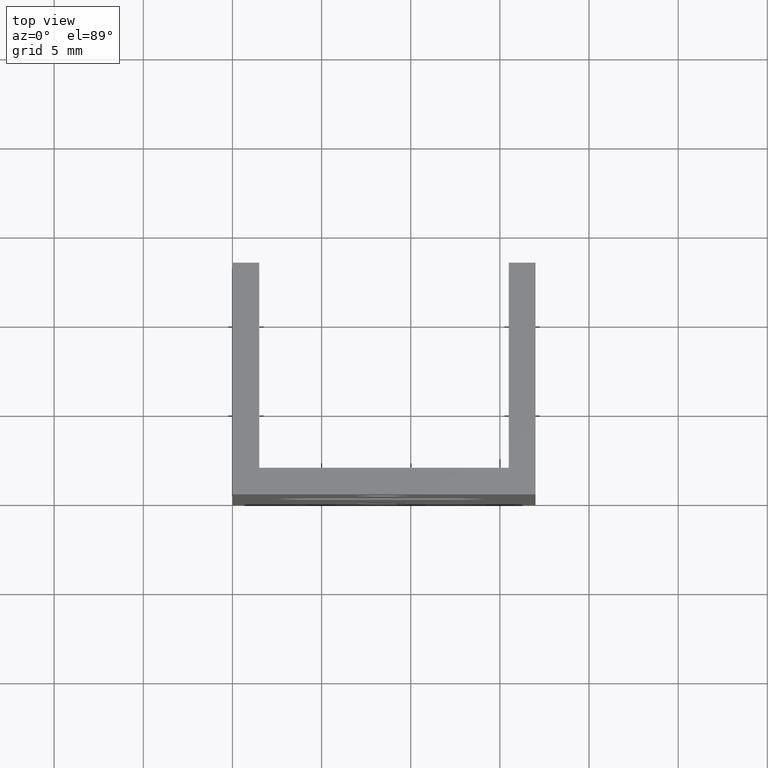
[diagram: clean part render]
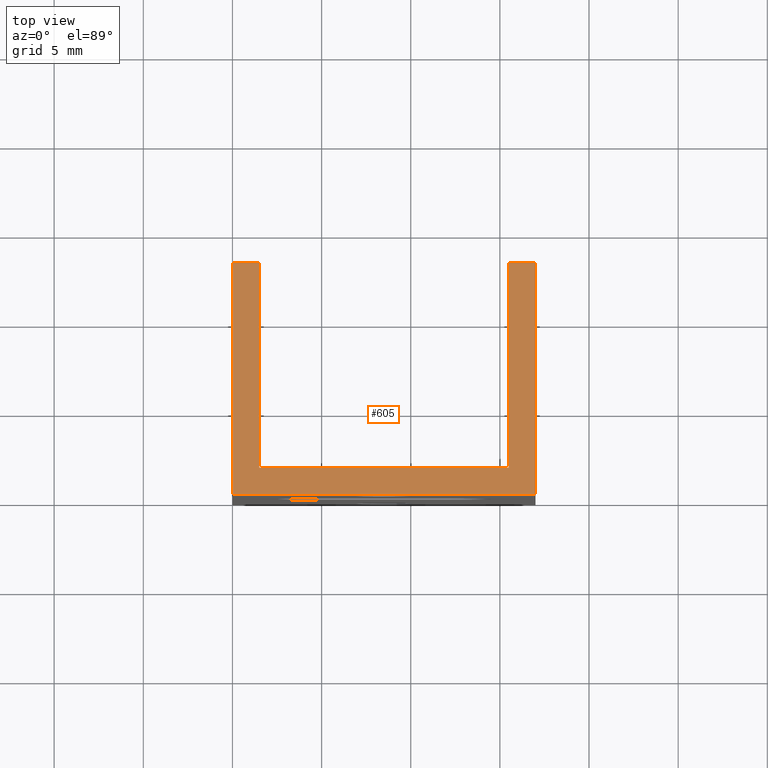
[diagram: same view with one face highlighted and labeled with its STEP entity id]
A machine part, top view. The second image highlights one B-rep face of the part: STEP entity #605.
In plain terms, the highlighted planar face has unit normal (0, 0, -1).
Its self-contained STEP definition (entity closure, byte-faithful):
#28 = VERTEX_POINT ( 'NONE', #67 ) ;
#38 = DIRECTION ( 'NONE',  ( -1.000000000000000000, -0.0000000000000000000, -0.0000000000000000000 ) ) ;
#60 = ORIENTED_EDGE ( 'NONE', *, *, #265, .T. ) ;
#67 = CARTESIAN_POINT ( 'NONE',  ( -3.184081677783117402E-15, 12.99999999999999822, 0.0000000000000000000 ) ) ;
#79 = LINE ( 'NONE', #489, #587 ) ;
#85 = CARTESIAN_POINT ( 'NONE',  ( 15.50000000000002132, 1.499999999999993783, 0.0000000000000000000 ) ) ;
#92 = DIRECTION ( 'NONE',  ( -1.000000000000000000, 0.0000000000000000000, -0.0000000000000000000 ) ) ;
#100 = VECTOR ( 'NONE', #213, 1000.000000000000000 ) ;
#107 = CARTESIAN_POINT ( 'NONE',  ( 17.00000000000001066, 12.99999999999999822, 0.0000000000000000000 ) ) ;
#112 = CARTESIAN_POINT ( 'NONE',  ( 0.0000000000000000000, 0.0000000000000000000, 0.0000000000000000000 ) ) ;
#135 = CARTESIAN_POINT ( 'NONE',  ( 17.00000000000001066, 12.99999999999999822, 0.0000000000000000000 ) ) ;
#136 = DIRECTION ( 'NONE',  ( 7.542275982507853202E-16, -1.000000000000000000, -0.0000000000000000000 ) ) ;
#139 = VERTEX_POINT ( 'NONE', #339 ) ;
#147 = CARTESIAN_POINT ( 'NONE',  ( 0.0000000000000000000, 0.0000000000000000000, 0.0000000000000000000 ) ) ;
#152 = EDGE_CURVE ( 'NONE', #266, #287, #235, .T. ) ;
#155 = ORIENTED_EDGE ( 'NONE', *, *, #645, .T. ) ;
#160 = VECTOR ( 'NONE', #136, 1000.000000000000000 ) ;
#161 = CARTESIAN_POINT ( 'NONE',  ( 15.50000000000002132, 1.499999999999993783, 0.0000000000000000000 ) ) ;
#188 = LINE ( 'NONE', #247, #221 ) ;
#199 = LINE ( 'NONE', #615, #100 ) ;
#208 = LINE ( 'NONE', #112, #595 ) ;
#213 = DIRECTION ( 'NONE',  ( -1.000000000000000000, -0.0000000000000000000, -0.0000000000000000000 ) ) ;
#217 = CARTESIAN_POINT ( 'NONE',  ( 1.499999999999996225, 12.99999999999999822, 0.0000000000000000000 ) ) ;
#221 = VECTOR ( 'NONE', #546, 1000.000000000000000 ) ;
#226 = CARTESIAN_POINT ( 'NONE',  ( 1.499999999999999112, 1.499999999999993783, 0.0000000000000000000 ) ) ;
#228 = VECTOR ( 'NONE', #308, 1000.000000000000000 ) ;
#235 = LINE ( 'NONE', #85, #160 ) ;
#240 = ORIENTED_EDGE ( 'NONE', *, *, #269, .T. ) ;
#247 = CARTESIAN_POINT ( 'NONE',  ( 17.00000000000002132, -2.143131898507878898E-16, 0.0000000000000000000 ) ) ;
#265 = EDGE_CURVE ( 'NONE', #433, #408, #441, .T. ) ;
#266 = VERTEX_POINT ( 'NONE', #496 ) ;
#269 = EDGE_CURVE ( 'NONE', #287, #433, #79, .T. ) ;
#273 = EDGE_CURVE ( 'NONE', #28, #341, #208, .T. ) ;
#287 = VERTEX_POINT ( 'NONE', #161 ) ;
#295 = ORIENTED_EDGE ( 'NONE', *, *, #387, .T. ) ;
#308 = DIRECTION ( 'NONE',  ( -8.006416042969880035E-16, 1.000000000000000000, -0.0000000000000000000 ) ) ;
#319 = LINE ( 'NONE', #413, #330 ) ;
#330 = VECTOR ( 'NONE', #559, 1000.000000000000000 ) ;
#332 = EDGE_CURVE ( 'NONE', #640, #266, #319, .T. ) ;
#339 = CARTESIAN_POINT ( 'NONE',  ( 17.00000000000002132, -2.143131898507878898E-16, 0.0000000000000000000 ) ) ;
#341 = VERTEX_POINT ( 'NONE', #356 ) ;
#344 = CARTESIAN_POINT ( 'NONE',  ( 1.499999999999996225, 12.99999999999999822, 0.0000000000000000000 ) ) ;
#356 = CARTESIAN_POINT ( 'NONE',  ( 0.0000000000000000000, 0.0000000000000000000, 0.0000000000000000000 ) ) ;
#387 = EDGE_CURVE ( 'NONE', #408, #28, #199, .T. ) ;
#388 = EDGE_CURVE ( 'NONE', #139, #640, #554, .T. ) ;
#398 = ORIENTED_EDGE ( 'NONE', *, *, #332, .T. ) ;
#408 = VERTEX_POINT ( 'NONE', #217 ) ;
#413 = CARTESIAN_POINT ( 'NONE',  ( 15.50000000000001243, 12.99999999999999822, 0.0000000000000000000 ) ) ;
#433 = VERTEX_POINT ( 'NONE', #226 ) ;
#437 = FACE_OUTER_BOUND ( 'NONE', #593, .T. ) ;
#441 = LINE ( 'NONE', #344, #461 ) ;
#450 = AXIS2_PLACEMENT_3D ( 'NONE', #147, #652, #92 ) ;
#461 = VECTOR ( 'NONE', #543, 1000.000000000000000 ) ;
#464 = ORIENTED_EDGE ( 'NONE', *, *, #152, .T. ) ;
#489 = CARTESIAN_POINT ( 'NONE',  ( 1.499999999999999112, 1.499999999999993783, 0.0000000000000000000 ) ) ;
#496 = CARTESIAN_POINT ( 'NONE',  ( 15.50000000000001243, 12.99999999999999822, 0.0000000000000000000 ) ) ;
#507 = ORIENTED_EDGE ( 'NONE', *, *, #273, .T. ) ;
#543 = DIRECTION ( 'NONE',  ( -2.639796593877749262E-16, 1.000000000000000000, -0.0000000000000000000 ) ) ;
#546 = DIRECTION ( 'NONE',  ( 1.000000000000000000, -1.260665822651691747E-17, -0.0000000000000000000 ) ) ;
#554 = LINE ( 'NONE', #107, #228 ) ;
#559 = DIRECTION ( 'NONE',  ( -1.000000000000000000, -0.0000000000000000000, -0.0000000000000000000 ) ) ;
#587 = VECTOR ( 'NONE', #38, 1000.000000000000000 ) ;
#593 = EDGE_LOOP ( 'NONE', ( #155, #650, #398, #464, #240, #60, #295, #507 ) ) ;
#595 = VECTOR ( 'NONE', #611, 1000.000000000000000 ) ;
#605 = ADVANCED_FACE ( 'NONE', ( #437 ), #648, .F. ) ;
#611 = DIRECTION ( 'NONE',  ( 2.449293598294705921E-16, -1.000000000000000000, -0.0000000000000000000 ) ) ;
#615 = CARTESIAN_POINT ( 'NONE',  ( -3.184081677783117402E-15, 12.99999999999999822, 0.0000000000000000000 ) ) ;
#640 = VERTEX_POINT ( 'NONE', #135 ) ;
#645 = EDGE_CURVE ( 'NONE', #341, #139, #188, .T. ) ;
#648 = PLANE ( 'NONE',  #450 ) ;
#650 = ORIENTED_EDGE ( 'NONE', *, *, #388, .T. ) ;
#652 = DIRECTION ( 'NONE',  ( 0.0000000000000000000, 0.0000000000000000000, -1.000000000000000000 ) ) ;